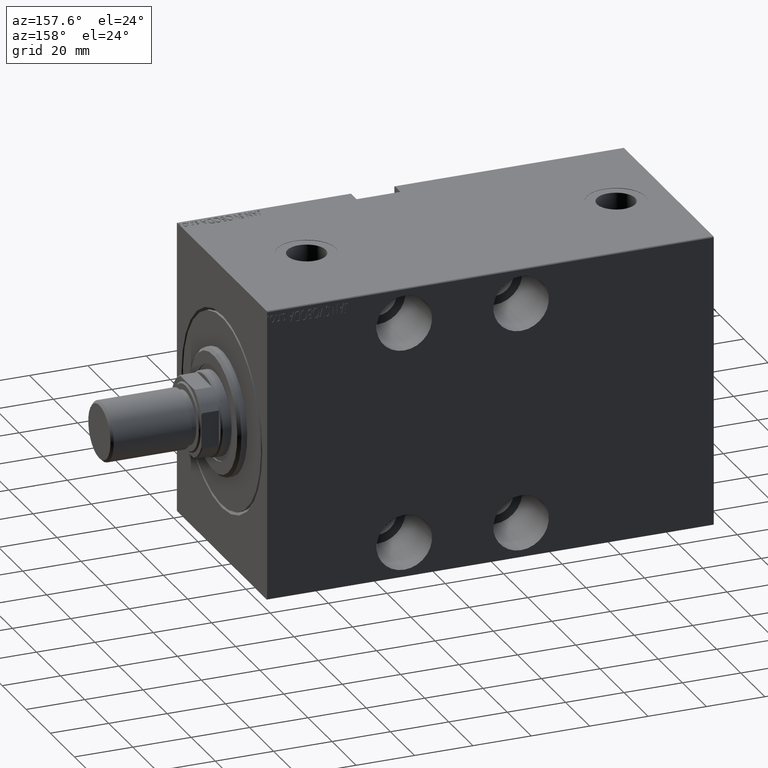
[diagram: clean part render]
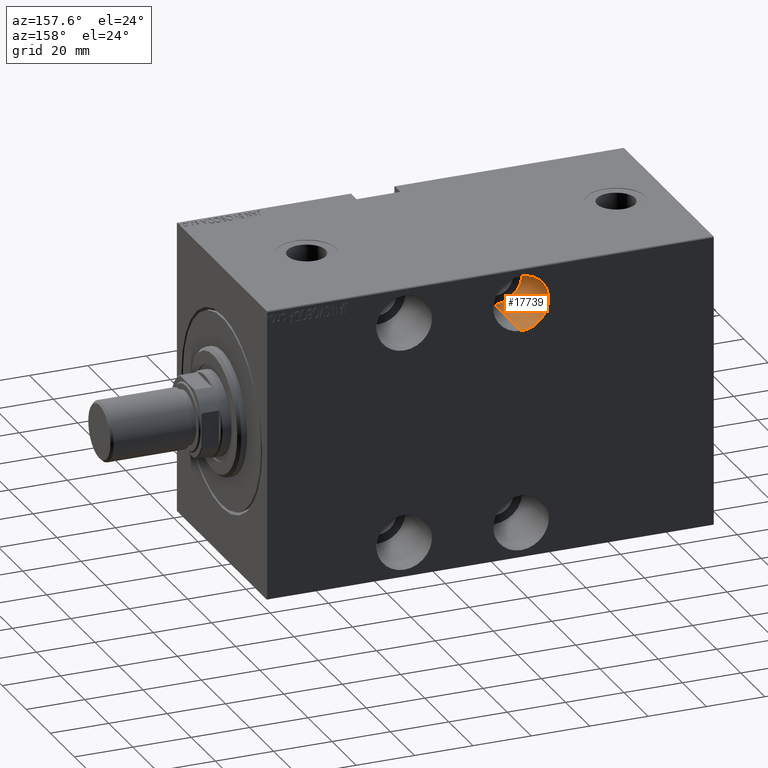
[diagram: same view with one face highlighted and labeled with its STEP entity id]
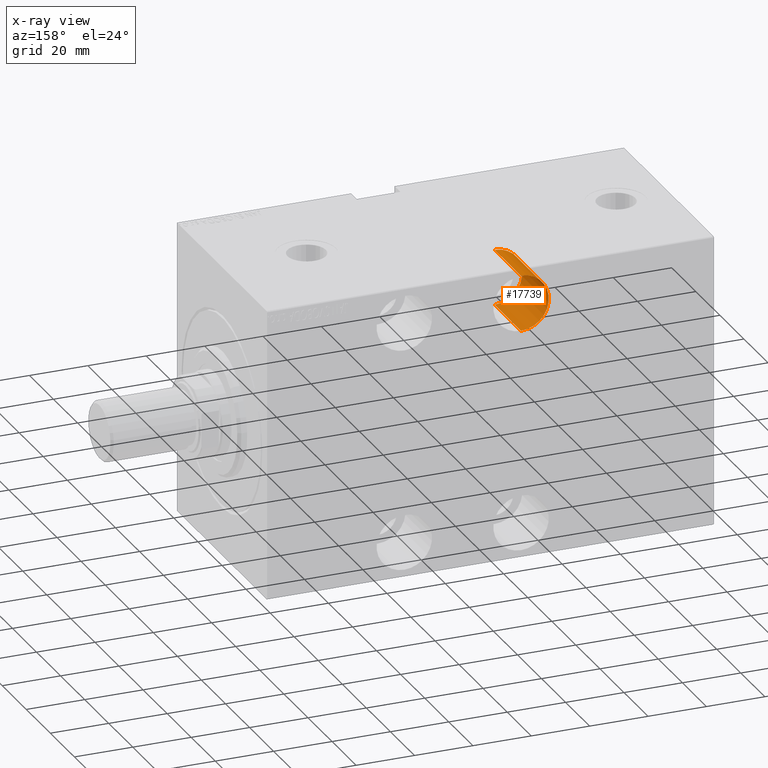
[diagram: x-ray of the same camera — body ghosted, the highlighted face saturated]
A machine part, auxiliary view. The second image highlights one B-rep face of the part: STEP entity #17739.
The next image is the same camera in x-ray: the body ghosted, the highlighted face saturated — about 0% of this face is hidden behind the body in this view.
In plain terms, the highlighted cylindrical surface (edge-blend (fillet) strip) has radius 9.5 mm, axis along (-0, 1, 0).
Its self-contained STEP definition (entity closure, byte-faithful):
#2214 = CARTESIAN_POINT ( 'NONE',  ( 87.00000000000000000, -15.49999999999999289, 28.50000000000001066 ) ) ;
#2436 = CARTESIAN_POINT ( 'NONE',  ( 87.00000000000000000, -15.49999999999999289, 47.50000000000000000 ) ) ;
#4761 = FACE_OUTER_BOUND ( 'NONE', #5960, .T. ) ;
#4933 = DIRECTION ( 'NONE',  ( 0.000000000000000000, -1.000000000000000000, 0.000000000000000000 ) ) ;
#5575 = AXIS2_PLACEMENT_3D ( 'NONE', #5595, #4933, #29366 ) ;
#5583 = LINE ( 'NONE', #2436, #31167 ) ;
#5595 = CARTESIAN_POINT ( 'NONE',  ( 87.00000000000000000, -37.49999999999999289, 38.00000000000000711 ) ) ;
#5960 = EDGE_LOOP ( 'NONE', ( #24242, #37104, #15817, #31569 ) ) ;
#6649 = CARTESIAN_POINT ( 'NONE',  ( 87.00000000000000000, -37.49999999999999289, 47.50000000000000000 ) ) ;
#7073 = VERTEX_POINT ( 'NONE', #12932 ) ;
#8360 = DIRECTION ( 'NONE',  ( 0.000000000000000000, -1.000000000000000000, 0.000000000000000000 ) ) ;
#9747 = EDGE_CURVE ( 'NONE', #15552, #7073, #39692, .T. ) ;
#11150 = EDGE_CURVE ( 'NONE', #7073, #30605, #5583, .T. ) ;
#11168 = EDGE_CURVE ( 'NONE', #15552, #25203, #19928, .T. ) ;
#12932 = CARTESIAN_POINT ( 'NONE',  ( 87.00000000000000000, -15.49999999999999289, 47.50000000000000000 ) ) ;
#15308 = DIRECTION ( 'NONE',  ( 0.000000000000000000, 0.000000000000000000, -1.000000000000000000 ) ) ;
#15552 = VERTEX_POINT ( 'NONE', #39520 ) ;
#15817 = ORIENTED_EDGE ( 'NONE', *, *, #11168, .T. ) ;
#17739 = ADVANCED_FACE ( 'NONE', ( #4761 ), #29193, .F. ) ;
#18647 = CARTESIAN_POINT ( 'NONE',  ( 87.00000000000000000, -15.49999999999999289, 38.00000000000000711 ) ) ;
#19928 = LINE ( 'NONE', #2214, #36877 ) ;
#20374 = AXIS2_PLACEMENT_3D ( 'NONE', #28766, #8360, #15308 ) ;
#21571 = DIRECTION ( 'NONE',  ( -0.000000000000000000, -1.000000000000000000, -0.000000000000000000 ) ) ;
#23062 = DIRECTION ( 'NONE',  ( -0.000000000000000000, -1.000000000000000000, -0.000000000000000000 ) ) ;
#23716 = CARTESIAN_POINT ( 'NONE',  ( 87.00000000000000000, -37.49999999999999289, 28.50000000000001066 ) ) ;
#24242 = ORIENTED_EDGE ( 'NONE', *, *, #11150, .F. ) ;
#25203 = VERTEX_POINT ( 'NONE', #23716 ) ;
#28766 = CARTESIAN_POINT ( 'NONE',  ( 87.00000000000000000, -15.49999999999999289, 38.00000000000000711 ) ) ;
#29193 = CYLINDRICAL_SURFACE ( 'NONE', #39635, 9.499999999999994671 ) ;
#29366 = DIRECTION ( 'NONE',  ( 0.000000000000000000, 0.000000000000000000, -1.000000000000000000 ) ) ;
#30223 = DIRECTION ( 'NONE',  ( -0.000000000000000000, -1.000000000000000000, -0.000000000000000000 ) ) ;
#30605 = VERTEX_POINT ( 'NONE', #6649 ) ;
#31167 = VECTOR ( 'NONE', #23062, 1000.000000000000000 ) ;
#31569 = ORIENTED_EDGE ( 'NONE', *, *, #34851, .T. ) ;
#34851 = EDGE_CURVE ( 'NONE', #25203, #30605, #36369, .T. ) ;
#36369 = CIRCLE ( 'NONE', #5575, 9.499999999999994671 ) ;
#36877 = VECTOR ( 'NONE', #30223, 1000.000000000000000 ) ;
#37104 = ORIENTED_EDGE ( 'NONE', *, *, #9747, .F. ) ;
#39499 = DIRECTION ( 'NONE',  ( 0.000000000000000000, 0.000000000000000000, -1.000000000000000000 ) ) ;
#39520 = CARTESIAN_POINT ( 'NONE',  ( 87.00000000000000000, -15.49999999999999289, 28.50000000000001066 ) ) ;
#39635 = AXIS2_PLACEMENT_3D ( 'NONE', #18647, #21571, #39499 ) ;
#39692 = CIRCLE ( 'NONE', #20374, 9.499999999999994671 ) ;